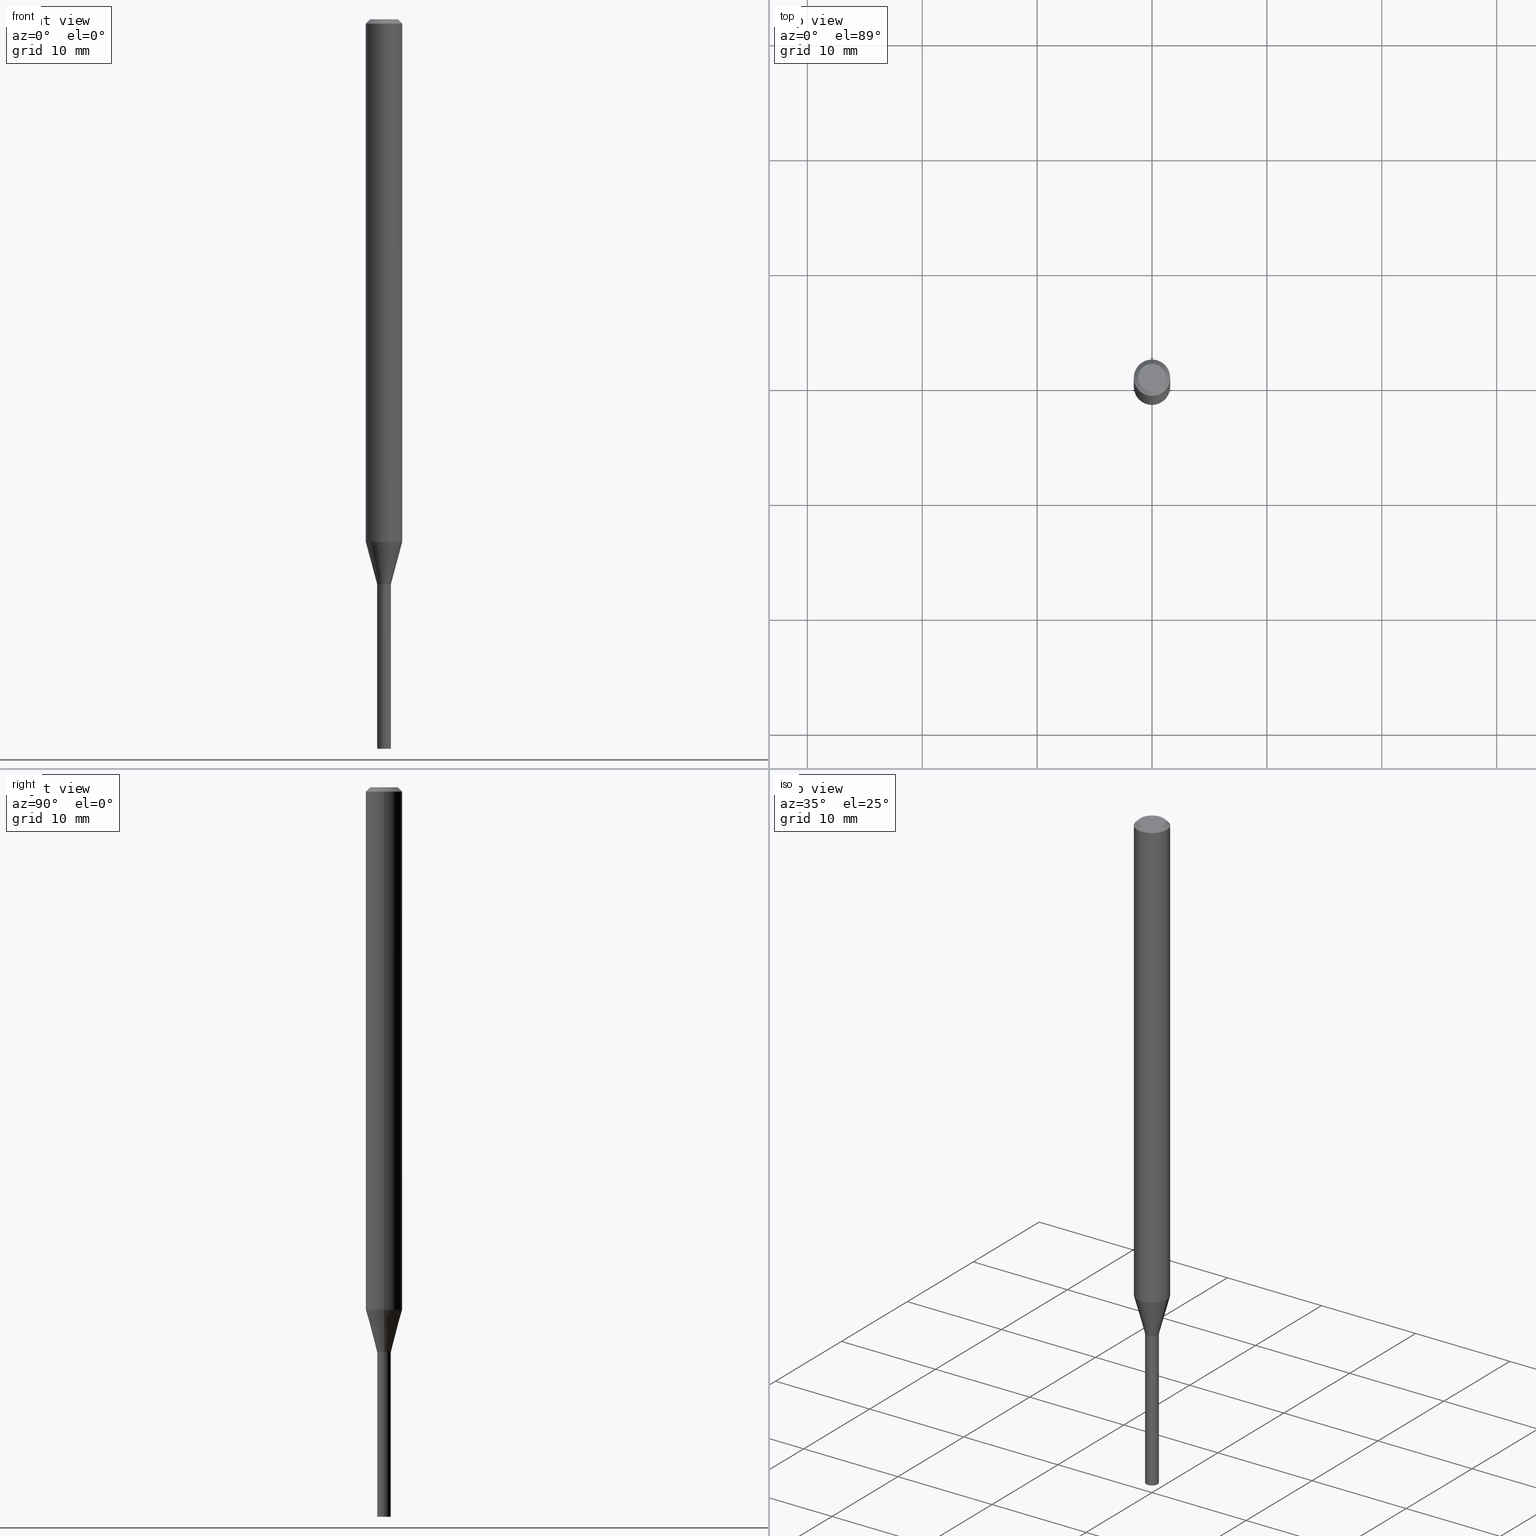
[diagram: canonical four-view strip — front | top / right | iso, engineering-drawing reading convention]
A machine part, canonical four-view strip (front | top / right | iso — engineering-drawing reading convention). The complete STEP part file that produces these views, byte-faithful:
ISO-10303-21;
HEADER;
FILE_DESCRIPTION (( 'STEP AP203' ),
    '1' );
FILE_NAME ('01292.STEP',
    '2024-03-20T01:06:53',
    ( '' ),
    ( '' ),
    'SwSTEP 2.0',
    'SolidWorks 2023',
    '' );
FILE_SCHEMA (( 'CONFIG_CONTROL_DESIGN' ));
ENDSEC;

DATA;
#1 = CIRCLE ( 'NONE', #242, 0.02299999999999999961 ) ;
#2 = FACE_OUTER_BOUND ( 'NONE', #456, .T. ) ;
#3 = CARTESIAN_POINT ( 'NONE',  ( 0.02350000000000000352, -1.640996229256272766E-16, 1.145901542312045115E-30 ) ) ;
#4 = CARTESIAN_POINT ( 'NONE',  ( 0.02350000000000000352, -6.923607494925958466E-15, -1.936000000000000387 ) ) ;
#5 = ORIENTED_EDGE ( 'NONE', *, *, #195, .T. ) ;
#6 = APPROVAL_STATUS ( 'not_yet_approved' ) ;
#7 = CC_DESIGN_PERSON_AND_ORGANIZATION_ASSIGNMENT ( #241, #382, ( #138 ) ) ;
#8 = DIRECTION ( 'NONE',  ( -2.445468806185136597E-29, 3.491481338843145583E-15, 1.000000000000000000 ) ) ;
#9 = ADVANCED_BREP_SHAPE_REPRESENTATION ( '01292', ( #386, #221, #454 ), #415 ) ;
#10 = PERSON_AND_ORGANIZATION ( #145, #103 ) ;
#11 = CARTESIAN_POINT ( 'NONE',  ( 4.378489669287124378E-29, -6.251322827740924299E-15, -1.790450018504814444 ) ) ;
#12 = AXIS2_PLACEMENT_3D ( 'NONE', #175, #352, #218 ) ;
#13 = CYLINDRICAL_SURFACE ( 'NONE', #227, 0.06250000000000000000 ) ;
#14 = DIRECTION ( 'NONE',  ( -2.445468806185136597E-29, 3.491481338843145583E-15, 1.000000000000000000 ) ) ;
#15 = DIRECTION ( 'NONE',  ( 0.7071067811865361374, -7.319954787623216602E-15, -0.7071067811865587860 ) ) ;
#16 = PRODUCT_RELATED_PRODUCT_CATEGORY ( 'detail', '', ( #122 ) ) ;
#17 = DIRECTION ( 'NONE',  ( -1.000000000000000000, 6.982962677686266711E-15, 0.000000000000000000 ) ) ;
#18 = AXIS2_PLACEMENT_3D ( 'NONE', #141, #286, #380 ) ;
#19 = CARTESIAN_POINT ( 'NONE',  ( -0.02350000000000000352, -7.577128066650474978E-15, -1.936000000000000387 ) ) ;
#20 = ORIENTED_EDGE ( 'NONE', *, *, #348, .F. ) ;
#21 = CARTESIAN_POINT ( 'NONE',  ( -0.06250000000000000000, -2.707758314061723270E-15, -0.01499999999999999944 ) ) ;
#22 = ADVANCED_FACE ( 'NONE', ( #208 ), #183, .T. ) ;
#23 = ORIENTED_EDGE ( 'NONE', *, *, #385, .T. ) ;
#24 = EDGE_LOOP ( 'NONE', ( #118, #412, #343, #265 ) ) ;
#25 = CARTESIAN_POINT ( 'NONE',  ( -1.179149380323703493E-44, 1.683512808135566071E-30, 4.821772321697055986E-16 ) ) ;
#26 = EDGE_LOOP ( 'NONE', ( #200, #20, #54, #164 ) ) ;
#27 = CC_DESIGN_APPROVAL ( #411, ( #90 ) ) ;
#28 = PERSON_AND_ORGANIZATION ( #145, #103 ) ;
#29 = EDGE_LOOP ( 'NONE', ( #267, #62, #228, #99 ) ) ;
#30 = APPROVAL_STATUS ( 'not_yet_approved' ) ;
#31 = APPROVAL_STATUS ( 'not_yet_approved' ) ;
#32 = ORIENTED_EDGE ( 'NONE', *, *, #140, .T. ) ;
#33 = EDGE_CURVE ( 'NONE', #167, #106, #301, .T. ) ;
#34 = DIRECTION ( 'NONE',  ( 1.000000000000000000, -6.982962677686247778E-15, 0.000000000000000000 ) ) ;
#35 = EDGE_CURVE ( 'NONE', #167, #272, #191, .T. ) ;
#36 = DATE_AND_TIME ( #324, #209 ) ;
#37 = CARTESIAN_POINT ( 'NONE',  ( 6.113672015462842613E-29, -8.728703347107864943E-15, -2.500000000000000000 ) ) ;
#38 = EDGE_CURVE ( 'NONE', #132, #266, #392, .T. ) ;
#39 = SHAPE_DEFINITION_REPRESENTATION ( #213, #9 ) ;
#40 = VECTOR ( 'NONE', #153, 39.37007874015748854 ) ;
#41 = DIRECTION ( 'NONE',  ( -2.445468806185136877E-29, 3.491481338843145188E-15, 1.000000000000000000 ) ) ;
#42 = DIRECTION ( 'NONE',  ( 2.445468806185136597E-29, -3.491481338843145583E-15, -1.000000000000000000 ) ) ;
#43 = CC_DESIGN_SECURITY_CLASSIFICATION ( #90, ( #452 ) ) ;
#44 = SECURITY_CLASSIFICATION_LEVEL ( 'unclassified' ) ;
#45 = CARTESIAN_POINT ( 'NONE',  ( -0.04749999999999999362, 3.578768372314218888E-16, 4.821772321697032320E-16 ) ) ;
#46 = ORIENTED_EDGE ( 'NONE', *, *, #306, .T. ) ;
#47 = PERSON_AND_ORGANIZATION_ROLE ( 'design_supplier' ) ;
#48 = ORIENTED_EDGE ( 'NONE', *, *, #195, .F. ) ;
#49 = DIRECTION ( 'NONE',  ( -2.445468806185136597E-29, 3.491481338843145583E-15, 1.000000000000000000 ) ) ;
#50 = ORIENTED_EDGE ( 'NONE', *, *, #401, .T. ) ;
#51 = VERTEX_POINT ( 'NONE', #69 ) ;
#52 = DIRECTION ( 'NONE',  ( 2.445468806185136597E-29, -3.491481338843145583E-15, -1.000000000000000000 ) ) ;
#53 = VECTOR ( 'NONE', #342, 39.37007874015748143 ) ;
#54 = ORIENTED_EDGE ( 'NONE', *, *, #370, .T. ) ;
#55 = CC_DESIGN_APPROVAL ( #363, ( #452 ) ) ;
#56 = CARTESIAN_POINT ( 'NONE',  ( 0.02349999999999992373, -1.640996229256267589E-16, 1.145901542312041261E-30 ) ) ;
#57 = CC_DESIGN_PERSON_AND_ORGANIZATION_ASSIGNMENT ( #360, #80, ( #452 ) ) ;
#58 = DIRECTION ( 'NONE',  ( 1.000000000000000000, -6.982962677686251722E-15, 0.000000000000000000 ) ) ;
#59 = EDGE_CURVE ( 'NONE', #106, #137, #199, .T. ) ;
#60 = DIRECTION ( 'NONE',  ( 1.000000000000000000, -6.982962677686253300E-15, 0.000000000000000000 ) ) ;
#61 = CARTESIAN_POINT ( 'NONE',  ( 0.000000000000000000, 0.000000000000000000, 0.000000000000000000 ) ) ;
#62 = ORIENTED_EDGE ( 'NONE', *, *, #154, .T. ) ;
#63 = AXIS2_PLACEMENT_3D ( 'NONE', #319, #42, #113 ) ;
#64 = FACE_OUTER_BOUND ( 'NONE', #87, .T. ) ;
#65 = VERTEX_POINT ( 'NONE', #407 ) ;
#66 = ADVANCED_FACE ( 'NONE', ( #245 ), #443, .T. ) ;
#67 = LINE ( 'NONE', #421, #53 ) ;
#68 = APPLICATION_CONTEXT ( 'configuration controlled 3d designs of mechanical parts and assemblies' ) ;
#69 = CARTESIAN_POINT ( 'NONE',  ( -0.02350000000000000352, -7.577128066650474978E-15, -2.500000000000000000 ) ) ;
#70 = AXIS2_PLACEMENT_3D ( 'NONE', #61, #223, #364 ) ;
#71 = DIRECTION ( 'NONE',  ( 1.000000000000000000, -6.982962677686251722E-15, 0.000000000000000000 ) ) ;
#72 = DIRECTION ( 'NONE',  ( 1.000000000000000000, 0.000000000000000000, 0.000000000000000000 ) ) ;
#73 = PLANE ( 'NONE',  #18 ) ;
#74 = VECTOR ( 'NONE', #327, 39.37007874015748143 ) ;
#75 = APPROVAL ( #30, 'UNSPECIFIED' ) ;
#76 = VERTEX_POINT ( 'NONE', #418 ) ;
#77 = EDGE_CURVE ( 'NONE', #347, #137, #314, .T. ) ;
#78 = LINE ( 'NONE', #393, #436 ) ;
#79 = ORIENTED_EDGE ( 'NONE', *, *, #370, .F. ) ;
#80 = PERSON_AND_ORGANIZATION_ROLE ( 'creator' ) ;
#81 = CYLINDRICAL_SURFACE ( 'NONE', #389, 0.02350000000000000352 ) ;
#82 = AXIS2_PLACEMENT_3D ( 'NONE', #108, #322, #146 ) ;
#83 = CARTESIAN_POINT ( 'NONE',  ( -0.02350000000000000352, 1.669775429036235687E-16, -1.155949746209903035E-30 ) ) ;
#84 = APPROVAL_DATE_TIME ( #246, #411 ) ;
#85 = LINE ( 'NONE', #86, #40 ) ;
#86 = CARTESIAN_POINT ( 'NONE',  ( -0.06250000000000000000, 3.840629472727444916E-16, -0.01499999999999999944 ) ) ;
#87 = EDGE_LOOP ( 'NONE', ( #166, #216 ) ) ;
#88 = DIRECTION ( 'NONE',  ( 1.000000000000000000, -6.982962677686269866E-15, 0.000000000000000000 ) ) ;
#89 = AXIS2_PLACEMENT_3D ( 'NONE', #287, #400, #399 ) ;
#90 = SECURITY_CLASSIFICATION ( '', '', #44 ) ;
#91 = CLOSED_SHELL ( 'NONE', ( #274, #312, #285, #426 ) ) ;
#92 = CIRCLE ( 'NONE', #149, 0.04749999999999999362 ) ;
#93 = DIRECTION ( 'NONE',  ( -2.445468806185136597E-29, 3.491481338843145583E-15, 1.000000000000000000 ) ) ;
#94 = PLANE ( 'NONE',  #365 ) ;
#95 = ORIENTED_EDGE ( 'NONE', *, *, #237, .T. ) ;
#96 = CARTESIAN_POINT ( 'NONE',  ( -0.06250000000000000000, 4.440892098500626162E-16, -3.074334431409316114E-30 ) ) ;
#97 = AXIS2_PLACEMENT_3D ( 'NONE', #358, #390, #119 ) ;
#98 = PERSON_AND_ORGANIZATION_ROLE ( 'design_owner' ) ;
#99 = ORIENTED_EDGE ( 'NONE', *, *, #326, .F. ) ;
#100 = APPROVAL_DATE_TIME ( #457, #75 ) ;
#101 = VECTOR ( 'NONE', #305, 39.37007874015748143 ) ;
#102 = ORIENTED_EDGE ( 'NONE', *, *, #258, .T. ) ;
#103 = ORGANIZATION ( 'UNSPECIFIED', 'UNSPECIFIED', '' ) ;
#104 = COORDINATED_UNIVERSAL_TIME_OFFSET ( 5, 0, .BEHIND. ) ;
#105 = EDGE_CURVE ( 'NONE', #110, #296, #379, .T. ) ;
#106 = VERTEX_POINT ( 'NONE', #294 ) ;
#107 = PERSON_AND_ORGANIZATION_ROLE ( 'classification_officer' ) ;
#108 = CARTESIAN_POINT ( 'NONE',  ( 3.668203209277705088E-31, -5.237222008264718399E-17, -0.01499999999999999944 ) ) ;
#109 = AXIS2_PLACEMENT_3D ( 'NONE', #303, #155, #162 ) ;
#110 = VERTEX_POINT ( 'NONE', #45 ) ;
#111 = LINE ( 'NONE', #355, #383 ) ;
#112 = CARTESIAN_POINT ( 'NONE',  ( -0.02299999999999999961, -6.593433815601398009E-15, -1.936000000000000387 ) ) ;
#113 = DIRECTION ( 'NONE',  ( -1.000000000000000000, 6.982962677686266711E-15, 0.000000000000000000 ) ) ;
#114 = EDGE_CURVE ( 'NONE', #167, #347, #78, .T. ) ;
#115 = DATE_TIME_ROLE ( 'classification_date' ) ;
#116 = DIRECTION ( 'NONE',  ( 1.000000000000000000, -6.982962677686265922E-15, 4.876176775795935793E-29 ) ) ;
#117 = AXIS2_PLACEMENT_3D ( 'NONE', #353, #264, #131 ) ;
#118 = ORIENTED_EDGE ( 'NONE', *, *, #323, .F. ) ;
#119 = DIRECTION ( 'NONE',  ( 1.000000000000000000, -6.982962677686253300E-15, 0.000000000000000000 ) ) ;
#120 = ORIENTED_EDGE ( 'NONE', *, *, #180, .T. ) ;
#121 = DIRECTION ( 'NONE',  ( 1.000000000000000000, -6.982962677686253300E-15, 0.000000000000000000 ) ) ;
#122 = PRODUCT ( '01292', '01292', '', ( #239 ) ) ;
#123 = ADVANCED_FACE ( 'NONE', ( #2 ), #346, .T. ) ;
#124 = FACE_OUTER_BOUND ( 'NONE', #409, .T. ) ;
#125 = CONICAL_SURFACE ( 'NONE', #176, 0.02299999999999999961, 0.7853981633974739252 ) ;
#126 = AXIS2_PLACEMENT_3D ( 'NONE', #220, #14, #449 ) ;
#127 = DIRECTION ( 'NONE',  ( -2.445468806185136597E-29, 3.491481338843145583E-15, 1.000000000000000000 ) ) ;
#128 = CARTESIAN_POINT ( 'NONE',  ( 0.000000000000000000, 0.000000000000000000, 0.000000000000000000 ) ) ;
#129 = EDGE_LOOP ( 'NONE', ( #259, #187 ) ) ;
#130 = VERTEX_POINT ( 'NONE', #290 ) ;
#131 = DIRECTION ( 'NONE',  ( 1.000000000000000000, -6.982962677686262766E-15, 0.000000000000000000 ) ) ;
#132 = VERTEX_POINT ( 'NONE', #434 ) ;
#133 = CARTESIAN_POINT ( 'NONE',  ( 4.734427608774424873E-29, -6.759507872000331609E-15, -1.936000000000000387 ) ) ;
#134 = EDGE_CURVE ( 'NONE', #132, #51, #236, .T. ) ;
#135 = CARTESIAN_POINT ( 'NONE',  ( 4.734427608774424873E-29, -6.759507872000331609E-15, -1.936000000000000387 ) ) ;
#136 = CIRCLE ( 'NONE', #12, 0.02350000000000000352 ) ;
#137 = VERTEX_POINT ( 'NONE', #185 ) ;
#138 = PRODUCT_DEFINITION ( 'UNKNOWN', '', #452, #252 ) ;
#139 =( NAMED_UNIT ( * ) PLANE_ANGLE_UNIT ( ) SI_UNIT ( $, .RADIAN. ) );
#140 = EDGE_CURVE ( 'NONE', #76, #354, #279, .T. ) ;
#141 = CARTESIAN_POINT ( 'NONE',  ( 4.734427608774424873E-29, -6.759507872000331609E-15, -1.936000000000000387 ) ) ;
#142 = ORIENTED_EDGE ( 'NONE', *, *, #105, .F. ) ;
#143 = CARTESIAN_POINT ( 'NONE',  ( 4.733204874371333192E-29, -6.757762131330910105E-15, -1.935500000000000442 ) ) ;
#144 = PLANE ( 'NONE',  #277 ) ;
#145 = PERSON ( 'UNSPECIFIED', 'UNSPECIFIED', 'UNSPECIFIED', ('UNSPECIFIED'), ('UNSPECIFIED'), ('UNSPECIFIED') ) ;
#146 = DIRECTION ( 'NONE',  ( 1.000000000000000000, -6.982962677686266711E-15, 0.000000000000000000 ) ) ;
#147 = AXIS2_PLACEMENT_3D ( 'NONE', #37, #318, #148 ) ;
#148 = DIRECTION ( 'NONE',  ( 1.000000000000000000, -6.982962677686228056E-15, 0.000000000000000000 ) ) ;
#149 = AXIS2_PLACEMENT_3D ( 'NONE', #25, #197, #344 ) ;
#150 = CARTESIAN_POINT ( 'NONE',  ( 4.734427608774424873E-29, -6.759507872000331609E-15, -1.936000000000000387 ) ) ;
#151 = APPROVAL_ROLE ( '' ) ;
#152 = FACE_OUTER_BOUND ( 'NONE', #419, .T. ) ;
#153 = DIRECTION ( 'NONE',  ( -0.7071067811865361374, 2.468850131082138337E-15, -0.7071067811865587860 ) ) ;
#154 = EDGE_CURVE ( 'NONE', #168, #65, #1, .T. ) ;
#155 = DIRECTION ( 'NONE',  ( -2.445468806185136597E-29, 3.491481338843145583E-15, 1.000000000000000000 ) ) ;
#156 = ORIENTED_EDGE ( 'NONE', *, *, #140, .F. ) ;
#157 = CARTESIAN_POINT ( 'NONE',  ( 3.316907271900976096E-16, 0.04749999999999999362, 7.524325248980341519E-17 ) ) ;
#158 = ORIENTED_EDGE ( 'NONE', *, *, #33, .T. ) ;
#159 = ORIENTED_EDGE ( 'NONE', *, *, #59, .T. ) ;
#160 = DIRECTION ( 'NONE',  ( 1.000000000000000000, -6.982962677686266711E-15, 4.876176775795935793E-29 ) ) ;
#161 = CONICAL_SURFACE ( 'NONE', #215, 0.02349999999999992026, 0.2617993877991504625 ) ;
#162 = DIRECTION ( 'NONE',  ( 1.000000000000000000, -6.982962677686267499E-15, 4.876176775795936353E-29 ) ) ;
#163 = DIRECTION ( 'NONE',  ( -2.445468806185136877E-29, 3.491481338843145188E-15, 1.000000000000000000 ) ) ;
#164 = ORIENTED_EDGE ( 'NONE', *, *, #433, .T. ) ;
#165 = CYLINDRICAL_SURFACE ( 'NONE', #70, 0.02349999999999992373 ) ;
#166 = ORIENTED_EDGE ( 'NONE', *, *, #134, .F. ) ;
#167 = VERTEX_POINT ( 'NONE', #435 ) ;
#168 = VERTEX_POINT ( 'NONE', #112 ) ;
#169 = VECTOR ( 'NONE', #15, 39.37007874015748854 ) ;
#170 = DATE_AND_TIME ( #201, #178 ) ;
#171 = ORIENTED_EDGE ( 'NONE', *, *, #38, .F. ) ;
#172 = AXIS2_PLACEMENT_3D ( 'NONE', #429, #179, #464 ) ;
#173 = CARTESIAN_POINT ( 'NONE',  ( 1.640996229256746082E-16, 0.02349999999999324157, -1.936000000000000387 ) ) ;
#174 = DIRECTION ( 'NONE',  ( -2.445468806185136597E-29, 3.491481338843145583E-15, 1.000000000000000000 ) ) ;
#175 = CARTESIAN_POINT ( 'NONE',  ( 4.734427608774424873E-29, -6.759507872000331609E-15, -1.936000000000000387 ) ) ;
#176 = AXIS2_PLACEMENT_3D ( 'NONE', #133, #270, #329 ) ;
#177 = CALENDAR_DATE ( 2024, 19, 3 ) ;
#178 = LOCAL_TIME ( 21, 6, 53.00000000000000000, #104 ) ;
#179 = DIRECTION ( 'NONE',  ( -2.445468806185136597E-29, 3.491481338843145583E-15, 1.000000000000000000 ) ) ;
#180 = EDGE_CURVE ( 'NONE', #110, #354, #85, .T. ) ;
#181 = PERSON_AND_ORGANIZATION ( #145, #103 ) ;
#182 = CARTESIAN_POINT ( 'NONE',  ( 4.734427608774424873E-29, -6.759507872000331609E-15, -1.936000000000000387 ) ) ;
#183 = CYLINDRICAL_SURFACE ( 'NONE', #126, 0.06250000000000000000 ) ;
#184 = COORDINATED_UNIVERSAL_TIME_OFFSET ( 5, 0, .BEHIND. ) ;
#185 = CARTESIAN_POINT ( 'NONE',  ( 0.06250000000000000000, -6.687757995096315969E-15, -1.790450018504814444 ) ) ;
#186 = CARTESIAN_POINT ( 'NONE',  ( 4.733204874371333192E-29, -6.757762131330910105E-15, -1.935500000000000442 ) ) ;
#187 = ORIENTED_EDGE ( 'NONE', *, *, #448, .T. ) ;
#188 = CARTESIAN_POINT ( 'NONE',  ( 4.734427608774424873E-29, -6.759507872000331609E-15, -1.936000000000000387 ) ) ;
#189 = CARTESIAN_POINT ( 'NONE',  ( 4.734427608774424873E-29, -6.759507872000331609E-15, -1.936000000000000387 ) ) ;
#190 = DIRECTION ( 'NONE',  ( -2.438088387897960049E-29, 3.491481338843145188E-15, 1.000000000000000000 ) ) ;
#191 = LINE ( 'NONE', #463, #271 ) ;
#192 = CARTESIAN_POINT ( 'NONE',  ( -0.06250000000000000000, -5.807233617890861683E-15, -1.790450018504814444 ) ) ;
#193 = CIRCLE ( 'NONE', #283, 0.02349999999999992373 ) ;
#194 = VECTOR ( 'NONE', #163, 39.37007874015748143 ) ;
#195 = EDGE_CURVE ( 'NONE', #137, #347, #288, .T. ) ;
#196 = CARTESIAN_POINT ( 'NONE',  ( 6.194428952736783458E-29, -8.613054816532157721E-15, -2.500000000000000000 ) ) ;
#197 = DIRECTION ( 'NONE',  ( -2.445468806185136597E-29, 3.491481338843145583E-15, 1.000000000000000000 ) ) ;
#198 = AXIS2_PLACEMENT_3D ( 'NONE', #196, #190, #417 ) ;
#199 = LINE ( 'NONE', #441, #461 ) ;
#200 = ORIENTED_EDGE ( 'NONE', *, *, #35, .F. ) ;
#201 = CALENDAR_DATE ( 2024, 19, 3 ) ;
#202 = UNCERTAINTY_MEASURE_WITH_UNIT (LENGTH_MEASURE( 1.000000000000000082E-05 ), #206, 'distance_accuracy_value', 'NONE');
#203 = ORIENTED_EDGE ( 'NONE', *, *, #59, .F. ) ;
#204 = ORIENTED_EDGE ( 'NONE', *, *, #154, .F. ) ;
#205 = PERSON_AND_ORGANIZATION ( #145, #103 ) ;
#206 =( CONVERSION_BASED_UNIT ( 'INCH', #313 ) LENGTH_UNIT ( ) NAMED_UNIT ( #278 ) );
#207 = VECTOR ( 'NONE', #373, 39.37007874015748143 ) ;
#208 = FACE_OUTER_BOUND ( 'NONE', #376, .T. ) ;
#209 = LOCAL_TIME ( 21, 6, 53.00000000000000000, #184 ) ;
#210 = EDGE_LOOP ( 'NONE', ( #438, #158, #159, #366 ) ) ;
#211 = AXIS2_PLACEMENT_3D ( 'NONE', #260, #289, #250 ) ;
#212 = LINE ( 'NONE', #83, #74 ) ;
#213 = PRODUCT_DEFINITION_SHAPE ( 'NONE', 'NONE',  #138 ) ;
#214 = FACE_OUTER_BOUND ( 'NONE', #422, .T. ) ;
#215 = AXIS2_PLACEMENT_3D ( 'NONE', #135, #447, #121 ) ;
#216 = ORIENTED_EDGE ( 'NONE', *, *, #258, .F. ) ;
#217 = APPROVAL_DATE_TIME ( #255, #363 ) ;
#218 = DIRECTION ( 'NONE',  ( 1.000000000000000000, -6.982962677686269866E-15, 0.000000000000000000 ) ) ;
#219 = DIRECTION ( 'NONE',  ( -2.445468806185136597E-29, 3.491481338843145583E-15, 1.000000000000000000 ) ) ;
#220 = CARTESIAN_POINT ( 'NONE',  ( 0.000000000000000000, 0.000000000000000000, 0.000000000000000000 ) ) ;
#221 = MANIFOLD_SOLID_BREP ( 'Body-Move/Copy2[2]', #405 ) ;
#222 = EDGE_CURVE ( 'NONE', #354, #76, #328, .T. ) ;
#223 = DIRECTION ( 'NONE',  ( -2.445468806185136597E-29, 3.491481338843145583E-15, 1.000000000000000000 ) ) ;
#224 = LOCAL_TIME ( 21, 6, 53.00000000000000000, #321 ) ;
#225 = LINE ( 'NONE', #413, #368 ) ;
#226 = ORIENTED_EDGE ( 'NONE', *, *, #251, .F. ) ;
#227 = AXIS2_PLACEMENT_3D ( 'NONE', #128, #333, #160 ) ;
#228 = ORIENTED_EDGE ( 'NONE', *, *, #420, .T. ) ;
#229 = DIRECTION ( 'NONE',  ( 1.000000000000000000, -6.982962677686253300E-15, 0.000000000000000000 ) ) ;
#230 = DIRECTION ( 'NONE',  ( 0.2588190451025217387, 1.565188264969619207E-15, 0.9659258262890679791 ) ) ;
#231 = DIRECTION ( 'NONE',  ( -2.445468806185136597E-29, 3.491481338843145583E-15, 1.000000000000000000 ) ) ;
#232 = ADVANCED_FACE ( 'NONE', ( #254 ), #335, .T. ) ;
#233 = ORIENTED_EDGE ( 'NONE', *, *, #114, .T. ) ;
#234 = DIRECTION ( 'NONE',  ( -1.000000000000000000, 6.982962677686265922E-15, -4.876176775795935793E-29 ) ) ;
#235 = LOCAL_TIME ( 21, 6, 53.00000000000000000, #455 ) ;
#236 = CIRCLE ( 'NONE', #211, 0.02350000000000000352 ) ;
#237 = EDGE_CURVE ( 'NONE', #51, #304, #212, .T. ) ;
#238 = DIRECTION ( 'NONE',  ( -2.445468806185136597E-29, 3.491481338843145583E-15, 1.000000000000000000 ) ) ;
#239 = MECHANICAL_CONTEXT ( 'NONE', #244, 'mechanical' ) ;
#240 = EDGE_LOOP ( 'NONE', ( #446, #249, #362, #79 ) ) ;
#241 = PERSON_AND_ORGANIZATION ( #145, #103 ) ;
#242 = AXIS2_PLACEMENT_3D ( 'NONE', #150, #394, #34 ) ;
#243 = DIRECTION ( 'NONE',  ( -1.000000000000000000, 6.982962677686265922E-15, -4.876176775795935793E-29 ) ) ;
#244 = APPLICATION_CONTEXT ( 'configuration controlled 3d designs of mechanical parts and assemblies' ) ;
#245 = FACE_OUTER_BOUND ( 'NONE', #367, .T. ) ;
#246 = DATE_AND_TIME ( #177, #256 ) ;
#247 = CIRCLE ( 'NONE', #147, 0.02350000000000000352 ) ;
#248 = AXIS2_PLACEMENT_3D ( 'NONE', #11, #219, #349 ) ;
#249 = ORIENTED_EDGE ( 'NONE', *, *, #35, .T. ) ;
#250 = DIRECTION ( 'NONE',  ( 1.000000000000000000, -6.982962677686228056E-15, 0.000000000000000000 ) ) ;
#251 = EDGE_CURVE ( 'NONE', #266, #304, #136, .T. ) ;
#252 = DESIGN_CONTEXT ( 'detailed design', #68, 'design' ) ;
#253 = DIRECTION ( 'NONE',  ( 1.000000000000000000, -6.982962677686265922E-15, 4.876176775795935793E-29 ) ) ;
#254 = FACE_OUTER_BOUND ( 'NONE', #29, .T. ) ;
#255 = DATE_AND_TIME ( #351, #224 ) ;
#256 = LOCAL_TIME ( 21, 6, 53.00000000000000000, #398 ) ;
#257 = FACE_OUTER_BOUND ( 'NONE', #396, .T. ) ;
#258 = EDGE_CURVE ( 'NONE', #51, #132, #247, .T. ) ;
#259 = ORIENTED_EDGE ( 'NONE', *, *, #105, .T. ) ;
#260 = CARTESIAN_POINT ( 'NONE',  ( 6.113672015462842613E-29, -8.728703347107864943E-15, -2.500000000000000000 ) ) ;
#261 = ORIENTED_EDGE ( 'NONE', *, *, #323, .T. ) ;
#262 = ORIENTED_EDGE ( 'NONE', *, *, #38, .T. ) ;
#263 = DIRECTION ( 'NONE',  ( 2.438088387897960049E-29, -3.491481338843145188E-15, -1.000000000000000000 ) ) ;
#264 = DIRECTION ( 'NONE',  ( -2.445468806185136597E-29, 3.491481338843145583E-15, 1.000000000000000000 ) ) ;
#265 = ORIENTED_EDGE ( 'NONE', *, *, #222, .F. ) ;
#266 = VERTEX_POINT ( 'NONE', #4 ) ;
#267 = ORIENTED_EDGE ( 'NONE', *, *, #414, .F. ) ;
#268 = CIRCLE ( 'NONE', #320, 0.02349999999999992373 ) ;
#269 = CC_DESIGN_DATE_AND_TIME_ASSIGNMENT ( #36, #115, ( #90 ) ) ;
#270 = DIRECTION ( 'NONE',  ( -2.445468806185136597E-29, 3.491481338843145583E-15, 1.000000000000000000 ) ) ;
#271 = VECTOR ( 'NONE', #466, 39.37007874015748143 ) ;
#272 = VERTEX_POINT ( 'NONE', #325 ) ;
#273 = CARTESIAN_POINT ( 'NONE',  ( 0.06250000000000000000, -4.811533449433679005E-16, -0.01499999999999999944 ) ) ;
#274 = ADVANCED_FACE ( 'NONE', ( #214 ), #81, .T. ) ;
#275 = FACE_OUTER_BOUND ( 'NONE', #129, .T. ) ;
#276 = CARTESIAN_POINT ( 'NONE',  ( 3.668203209277705088E-31, -5.237222008264718399E-17, -0.01499999999999999944 ) ) ;
#277 = AXIS2_PLACEMENT_3D ( 'NONE', #173, #458, #243 ) ;
#278 = DIMENSIONAL_EXPONENTS ( 1.000000000000000000, 0.000000000000000000, 0.000000000000000000, 0.000000000000000000, 0.000000000000000000, 0.000000000000000000, 0.000000000000000000 ) ;
#279 = CIRCLE ( 'NONE', #89, 0.06250000000000000000 ) ;
#280 = EDGE_CURVE ( 'NONE', #137, #76, #111, .T. ) ;
#281 =( NAMED_UNIT ( * ) SI_UNIT ( $, .STERADIAN. ) SOLID_ANGLE_UNIT ( ) );
#282 = CALENDAR_DATE ( 2024, 19, 3 ) ;
#283 = AXIS2_PLACEMENT_3D ( 'NONE', #143, #238, #71 ) ;
#284 = FACE_OUTER_BOUND ( 'NONE', #317, .T. ) ;
#285 = ADVANCED_FACE ( 'NONE', ( #152 ), #291, .T. ) ;
#286 = DIRECTION ( 'NONE',  ( -2.438088387897960049E-29, 3.491481338843145188E-15, 1.000000000000000000 ) ) ;
#287 = CARTESIAN_POINT ( 'NONE',  ( 3.668203209277705088E-31, -5.237222008264718399E-17, -0.01499999999999999944 ) ) ;
#288 = CIRCLE ( 'NONE', #248, 0.06250000000000000000 ) ;
#289 = DIRECTION ( 'NONE',  ( -2.445468806185136597E-29, 3.491481338843145583E-15, 1.000000000000000000 ) ) ;
#290 = CARTESIAN_POINT ( 'NONE',  ( 0.02349999999999992373, -6.921861754256536174E-15, -1.935500000000000442 ) ) ;
#291 = CYLINDRICAL_SURFACE ( 'NONE', #356, 0.02350000000000000352 ) ;
#292 = ADVANCED_FACE ( 'NONE', ( #257 ), #403, .T. ) ;
#293 = APPROVAL_PERSON_ORGANIZATION ( #205, #363, #357 ) ;
#294 = CARTESIAN_POINT ( 'NONE',  ( 0.02349999999999992026, -6.923607494925957677E-15, -1.936000000000000387 ) ) ;
#295 = FACE_OUTER_BOUND ( 'NONE', #210, .T. ) ;
#296 = VERTEX_POINT ( 'NONE', #297 ) ;
#297 = CARTESIAN_POINT ( 'NONE',  ( 0.04749999999999999362, -4.035134999187569748E-16, 4.821772321697081624E-16 ) ) ;
#298 = ORIENTED_EDGE ( 'NONE', *, *, #401, .F. ) ;
#299 = AXIS2_PLACEMENT_3D ( 'NONE', #188, #93, #229 ) ;
#300 = FACE_OUTER_BOUND ( 'NONE', #240, .T. ) ;
#301 = CIRCLE ( 'NONE', #397, 0.02349999999999992026 ) ;
#302 = ORIENTED_EDGE ( 'NONE', *, *, #306, .F. ) ;
#303 = CARTESIAN_POINT ( 'NONE',  ( 0.000000000000000000, 0.000000000000000000, 0.000000000000000000 ) ) ;
#304 = VERTEX_POINT ( 'NONE', #19 ) ;
#305 = DIRECTION ( 'NONE',  ( -2.445468806185136877E-29, 3.491481338843145188E-15, 1.000000000000000000 ) ) ;
#306 = EDGE_CURVE ( 'NONE', #65, #168, #430, .T. ) ;
#307 = ORIENTED_EDGE ( 'NONE', *, *, #251, .T. ) ;
#308 = CIRCLE ( 'NONE', #299, 0.02349999999999992026 ) ;
#309 = CARTESIAN_POINT ( 'NONE',  ( 0.000000000000000000, 0.000000000000000000, 0.000000000000000000 ) ) ;
#310 = DATE_TIME_ROLE ( 'creation_date' ) ;
#311 = ORIENTED_EDGE ( 'NONE', *, *, #134, .T. ) ;
#312 = ADVANCED_FACE ( 'NONE', ( #64 ), #450, .F. ) ;
#313 = LENGTH_MEASURE_WITH_UNIT ( LENGTH_MEASURE( 0.02539999999999999897 ), #340 );
#314 = CIRCLE ( 'NONE', #117, 0.06250000000000000000 ) ;
#315 = ADVANCED_FACE ( 'NONE', ( #406 ), #165, .F. ) ;
#316 = DIRECTION ( 'NONE',  ( 1.000000000000000000, -6.982962677686247778E-15, 0.000000000000000000 ) ) ;
#317 = EDGE_LOOP ( 'NONE', ( #302, #204 ) ) ;
#318 = DIRECTION ( 'NONE',  ( -2.445468806185136597E-29, 3.491481338843145583E-15, 1.000000000000000000 ) ) ;
#319 = CARTESIAN_POINT ( 'NONE',  ( 3.668203209277705088E-31, -5.237222008264718399E-17, -0.01499999999999999944 ) ) ;
#320 = AXIS2_PLACEMENT_3D ( 'NONE', #186, #439, #58 ) ;
#321 = COORDINATED_UNIVERSAL_TIME_OFFSET ( 5, 0, .BEHIND. ) ;
#322 = DIRECTION ( 'NONE',  ( -2.445468806185136597E-29, 3.491481338843145583E-15, 1.000000000000000000 ) ) ;
#323 = EDGE_CURVE ( 'NONE', #347, #354, #440, .T. ) ;
#324 = CALENDAR_DATE ( 2024, 19, 3 ) ;
#325 = CARTESIAN_POINT ( 'NONE',  ( -0.02349999999999992373, -6.590784588427286808E-15, -1.935500000000000442 ) ) ;
#326 = EDGE_CURVE ( 'NONE', #272, #130, #268, .T. ) ;
#327 = DIRECTION ( 'NONE',  ( -2.445468806185136877E-29, 3.491481338843145188E-15, 1.000000000000000000 ) ) ;
#328 = CIRCLE ( 'NONE', #82, 0.06250000000000000000 ) ;
#329 = DIRECTION ( 'NONE',  ( 1.000000000000000000, -6.982962677686247778E-15, 0.000000000000000000 ) ) ;
#330 = ORIENTED_EDGE ( 'NONE', *, *, #222, .T. ) ;
#331 = DIRECTION ( 'NONE',  ( -2.445468806185136597E-29, 3.491481338843145583E-15, 1.000000000000000000 ) ) ;
#332 = ADVANCED_FACE ( 'NONE', ( #124 ), #125, .T. ) ;
#333 = DIRECTION ( 'NONE',  ( -2.445468806185136597E-29, 3.491481338843145583E-15, 1.000000000000000000 ) ) ;
#334 = CC_DESIGN_PERSON_AND_ORGANIZATION_ASSIGNMENT ( #28, #98, ( #122 ) ) ;
#335 = CONICAL_SURFACE ( 'NONE', #428, 0.02299999999999999961, 0.7853981633974739252 ) ;
#336 = LINE ( 'NONE', #56, #101 ) ;
#337 = ORIENTED_EDGE ( 'NONE', *, *, #433, .F. ) ;
#338 = DIRECTION ( 'NONE',  ( 1.000000000000000000, -6.982962677686247778E-15, 0.000000000000000000 ) ) ;
#339 = ORIENTED_EDGE ( 'NONE', *, *, #448, .F. ) ;
#340 =( LENGTH_UNIT ( ) NAMED_UNIT ( * ) SI_UNIT ( $, .METRE. ) );
#341 = CC_DESIGN_PERSON_AND_ORGANIZATION_ASSIGNMENT ( #427, #107, ( #90 ) ) ;
#342 = DIRECTION ( 'NONE',  ( 0.7071067811865656694, -2.468850131082446387E-15, 0.7071067811865294761 ) ) ;
#343 = ORIENTED_EDGE ( 'NONE', *, *, #280, .T. ) ;
#344 = DIRECTION ( 'NONE',  ( 1.000000000000000000, -6.982962677686267499E-15, 4.852736867747366768E-29 ) ) ;
#345 = ORIENTED_EDGE ( 'NONE', *, *, #420, .F. ) ;
#346 = CONICAL_SURFACE ( 'NONE', #97, 0.02349999999999992026, 0.2617993877991504625 ) ;
#347 = VERTEX_POINT ( 'NONE', #192 ) ;
#348 = EDGE_CURVE ( 'NONE', #106, #167, #308, .T. ) ;
#349 = DIRECTION ( 'NONE',  ( 1.000000000000000000, -6.982962677686262766E-15, 0.000000000000000000 ) ) ;
#350 = ORIENTED_EDGE ( 'NONE', *, *, #385, .F. ) ;
#351 = CALENDAR_DATE ( 2024, 19, 3 ) ;
#352 = DIRECTION ( 'NONE',  ( -2.445468806185136597E-29, 3.491481338843145583E-15, 1.000000000000000000 ) ) ;
#353 = CARTESIAN_POINT ( 'NONE',  ( 4.378489669287124378E-29, -6.251322827740924299E-15, -1.790450018504814444 ) ) ;
#354 = VERTEX_POINT ( 'NONE', #21 ) ;
#355 = CARTESIAN_POINT ( 'NONE',  ( 0.06250000000000000000, -4.364351673553916694E-16, 3.047610484872459871E-30 ) ) ;
#356 = AXIS2_PLACEMENT_3D ( 'NONE', #361, #49, #116 ) ;
#357 = APPROVAL_ROLE ( '' ) ;
#358 = CARTESIAN_POINT ( 'NONE',  ( 4.734427608774424873E-29, -6.759507872000331609E-15, -1.936000000000000387 ) ) ;
#359 = ADVANCED_FACE ( 'NONE', ( #444 ), #13, .T. ) ;
#360 = PERSON_AND_ORGANIZATION ( #145, #103 ) ;
#361 = CARTESIAN_POINT ( 'NONE',  ( 0.000000000000000000, 0.000000000000000000, 0.000000000000000000 ) ) ;
#362 = ORIENTED_EDGE ( 'NONE', *, *, #326, .T. ) ;
#363 = APPROVAL ( #31, 'UNSPECIFIED' ) ;
#364 = DIRECTION ( 'NONE',  ( 1.000000000000000000, -6.982962677686267499E-15, 4.876176775795936353E-29 ) ) ;
#365 = AXIS2_PLACEMENT_3D ( 'NONE', #157, #263, #234 ) ;
#366 = ORIENTED_EDGE ( 'NONE', *, *, #77, .F. ) ;
#367 = EDGE_LOOP ( 'NONE', ( #339, #23, #32, #384 ) ) ;
#368 = VECTOR ( 'NONE', #378, 39.37007874015748143 ) ;
#369 = CYLINDRICAL_SURFACE ( 'NONE', #109, 0.02349999999999992373 ) ;
#370 = EDGE_CURVE ( 'NONE', #106, #130, #336, .T. ) ;
#371 = ORIENTED_EDGE ( 'NONE', *, *, #348, .T. ) ;
#372 = CARTESIAN_POINT ( 'NONE',  ( 4.734427608774424873E-29, -6.759507872000331609E-15, -1.936000000000000387 ) ) ;
#373 = DIRECTION ( 'NONE',  ( -2.445468806185136877E-29, 3.491481338843145188E-15, 1.000000000000000000 ) ) ;
#374 = ORIENTED_EDGE ( 'NONE', *, *, #237, .F. ) ;
#375 = ADVANCED_FACE ( 'NONE', ( #300 ), #369, .F. ) ;
#376 = EDGE_LOOP ( 'NONE', ( #5, #261, #156, #445 ) ) ;
#377 = APPROVAL_PERSON_ORGANIZATION ( #462, #75, #423 ) ;
#378 = DIRECTION ( 'NONE',  ( -0.7071067811865656694, 7.493145998870420424E-15, 0.7071067811865294761 ) ) ;
#379 = CIRCLE ( 'NONE', #172, 0.04749999999999999362 ) ;
#380 = DIRECTION ( 'NONE',  ( 1.000000000000000000, -6.982962677686265922E-15, 4.876176775795935793E-29 ) ) ;
#381 = APPLICATION_PROTOCOL_DEFINITION ( 'international standard', 'config_control_design', 1994, #68 ) ;
#382 = PERSON_AND_ORGANIZATION_ROLE ( 'creator' ) ;
#383 = VECTOR ( 'NONE', #41, 39.37007874015748143 ) ;
#384 = ORIENTED_EDGE ( 'NONE', *, *, #180, .F. ) ;
#385 = EDGE_CURVE ( 'NONE', #296, #76, #410, .T. ) ;
#386 = MANIFOLD_SOLID_BREP ( 'Body-Move/Copy2[1]', #91 ) ;
#387 = APPLICATION_PROTOCOL_DEFINITION ( 'international standard', 'config_control_design', 1994, #244 ) ;
#388 = ADVANCED_FACE ( 'NONE', ( #295 ), #161, .T. ) ;
#389 = AXIS2_PLACEMENT_3D ( 'NONE', #432, #8, #253 ) ;
#390 = DIRECTION ( 'NONE',  ( -2.445468806185136597E-29, 3.491481338843145583E-15, 1.000000000000000000 ) ) ;
#391 = ORIENTED_EDGE ( 'NONE', *, *, #414, .T. ) ;
#392 = LINE ( 'NONE', #3, #194 ) ;
#393 = CARTESIAN_POINT ( 'NONE',  ( -0.02349999999999992026, -6.592530329096708311E-15, -1.936000000000000387 ) ) ;
#394 = DIRECTION ( 'NONE',  ( -2.445468806185136597E-29, 3.491481338843145583E-15, 1.000000000000000000 ) ) ;
#395 = ADVANCED_FACE ( 'NONE', ( #275 ), #94, .F. ) ;
#396 = EDGE_LOOP ( 'NONE', ( #350, #142, #120, #330 ) ) ;
#397 = AXIS2_PLACEMENT_3D ( 'NONE', #189, #127, #60 ) ;
#398 = COORDINATED_UNIVERSAL_TIME_OFFSET ( 5, 0, .BEHIND. ) ;
#399 = DIRECTION ( 'NONE',  ( 1.000000000000000000, -6.982962677686266711E-15, 0.000000000000000000 ) ) ;
#400 = DIRECTION ( 'NONE',  ( -2.445468806185136597E-29, 3.491481338843145583E-15, 1.000000000000000000 ) ) ;
#401 = EDGE_CURVE ( 'NONE', #304, #266, #459, .T. ) ;
#402 = CARTESIAN_POINT ( 'NONE',  ( 4.734427608774424873E-29, -6.759507872000331609E-15, -1.936000000000000387 ) ) ;
#403 = CONICAL_SURFACE ( 'NONE', #424, 0.06250000000000000000, 0.7853981633974322918 ) ;
#404 = APPROVAL_PERSON_ORGANIZATION ( #181, #411, #151 ) ;
#405 = CLOSED_SHELL ( 'NONE', ( #375, #332, #66, #22, #123, #388, #359, #292, #395, #460, #232, #315 ) ) ;
#406 = FACE_OUTER_BOUND ( 'NONE', #26, .T. ) ;
#407 = CARTESIAN_POINT ( 'NONE',  ( 0.02299999999999999961, -6.920116013587114670E-15, -1.936000000000000387 ) ) ;
#408 = EDGE_LOOP ( 'NONE', ( #307, #50 ) ) ;
#409 = EDGE_LOOP ( 'NONE', ( #46, #391, #337, #345 ) ) ;
#410 = LINE ( 'NONE', #273, #169 ) ;
#411 = APPROVAL ( #6, 'UNSPECIFIED' ) ;
#412 = ORIENTED_EDGE ( 'NONE', *, *, #77, .T. ) ;
#413 = CARTESIAN_POINT ( 'NONE',  ( -0.02299999999999999961, -6.596083042775508421E-15, -1.936000000000000387 ) ) ;
#414 = EDGE_CURVE ( 'NONE', #168, #272, #225, .T. ) ;
#415 =( GEOMETRIC_REPRESENTATION_CONTEXT ( 3 ) GLOBAL_UNCERTAINTY_ASSIGNED_CONTEXT ( ( #202 ) ) GLOBAL_UNIT_ASSIGNED_CONTEXT ( ( #206, #139, #281 ) ) REPRESENTATION_CONTEXT ( 'NONE', 'WORKASPACE' ) );
#416 = CC_DESIGN_APPROVAL ( #75, ( #138 ) ) ;
#417 = DIRECTION ( 'NONE',  ( 1.000000000000000000, -6.982962677686265922E-15, 4.876176775795935793E-29 ) ) ;
#418 = CARTESIAN_POINT ( 'NONE',  ( 0.06250000000000000000, -4.888073874380388472E-16, -0.01499999999999999944 ) ) ;
#419 = EDGE_LOOP ( 'NONE', ( #374, #102, #262, #298 ) ) ;
#420 = EDGE_CURVE ( 'NONE', #65, #130, #67, .T. ) ;
#421 = CARTESIAN_POINT ( 'NONE',  ( 0.02299999999999999961, -6.920116013587114670E-15, -1.936000000000000387 ) ) ;
#422 = EDGE_LOOP ( 'NONE', ( #311, #95, #226, #171 ) ) ;
#423 = APPROVAL_ROLE ( '' ) ;
#424 = AXIS2_PLACEMENT_3D ( 'NONE', #276, #52, #17 ) ;
#425 = DIRECTION ( 'NONE',  ( 0.000000000000000000, 0.000000000000000000, 1.000000000000000000 ) ) ;
#426 = ADVANCED_FACE ( 'NONE', ( #453 ), #144, .F. ) ;
#427 = PERSON_AND_ORGANIZATION ( #145, #103 ) ;
#428 = AXIS2_PLACEMENT_3D ( 'NONE', #182, #174, #316 ) ;
#429 = CARTESIAN_POINT ( 'NONE',  ( -1.179149380323703493E-44, 1.683512808135566071E-30, 4.821772321697055986E-16 ) ) ;
#430 = CIRCLE ( 'NONE', #442, 0.02299999999999999961 ) ;
#431 = CC_DESIGN_PERSON_AND_ORGANIZATION_ASSIGNMENT ( #10, #47, ( #452 ) ) ;
#432 = CARTESIAN_POINT ( 'NONE',  ( 0.000000000000000000, 0.000000000000000000, 0.000000000000000000 ) ) ;
#433 = EDGE_CURVE ( 'NONE', #130, #272, #193, .T. ) ;
#434 = CARTESIAN_POINT ( 'NONE',  ( 0.02350000000000000352, -8.892802970033491011E-15, -2.500000000000000000 ) ) ;
#435 = CARTESIAN_POINT ( 'NONE',  ( -0.02349999999999992026, -6.199881973493785786E-15, -1.936000000000000387 ) ) ;
#436 = VECTOR ( 'NONE', #437, 39.37007874015748854 ) ;
#437 = DIRECTION ( 'NONE',  ( -0.2588190451025217387, 5.211531920934551042E-15, 0.9659258262890679791 ) ) ;
#438 = ORIENTED_EDGE ( 'NONE', *, *, #114, .F. ) ;
#439 = DIRECTION ( 'NONE',  ( -2.445468806185136597E-29, 3.491481338843145583E-15, 1.000000000000000000 ) ) ;
#440 = LINE ( 'NONE', #96, #207 ) ;
#441 = CARTESIAN_POINT ( 'NONE',  ( 0.02349999999999992026, -6.923607494925957677E-15, -1.936000000000000387 ) ) ;
#442 = AXIS2_PLACEMENT_3D ( 'NONE', #372, #331, #338 ) ;
#443 = CONICAL_SURFACE ( 'NONE', #63, 0.06250000000000000000, 0.7853981633974322918 ) ;
#444 = FACE_OUTER_BOUND ( 'NONE', #24, .T. ) ;
#445 = ORIENTED_EDGE ( 'NONE', *, *, #280, .F. ) ;
#446 = ORIENTED_EDGE ( 'NONE', *, *, #33, .F. ) ;
#447 = DIRECTION ( 'NONE',  ( -2.445468806185136597E-29, 3.491481338843145583E-15, 1.000000000000000000 ) ) ;
#448 = EDGE_CURVE ( 'NONE', #296, #110, #92, .T. ) ;
#449 = DIRECTION ( 'NONE',  ( 1.000000000000000000, -6.982962677686266711E-15, 4.876176775795935793E-29 ) ) ;
#450 = PLANE ( 'NONE',  #198 ) ;
#451 = AXIS2_PLACEMENT_3D ( 'NONE', #402, #231, #88 ) ;
#452 = PRODUCT_DEFINITION_FORMATION_WITH_SPECIFIED_SOURCE ( 'ANY', '', #122, .NOT_KNOWN. ) ;
#453 = FACE_OUTER_BOUND ( 'NONE', #408, .T. ) ;
#454 = AXIS2_PLACEMENT_3D ( 'NONE', #309, #425, #72 ) ;
#455 = COORDINATED_UNIVERSAL_TIME_OFFSET ( 5, 0, .BEHIND. ) ;
#456 = EDGE_LOOP ( 'NONE', ( #371, #233, #48, #203 ) ) ;
#457 = DATE_AND_TIME ( #282, #235 ) ;
#458 = DIRECTION ( 'NONE',  ( 2.438088387897960049E-29, -3.491481338843145188E-15, -1.000000000000000000 ) ) ;
#459 = CIRCLE ( 'NONE', #451, 0.02350000000000000352 ) ;
#460 = ADVANCED_FACE ( 'NONE', ( #284 ), #73, .F. ) ;
#461 = VECTOR ( 'NONE', #230, 39.37007874015748854 ) ;
#462 = PERSON_AND_ORGANIZATION ( #145, #103 ) ;
#463 = CARTESIAN_POINT ( 'NONE',  ( -0.02349999999999992373, 1.669775429036230017E-16, -1.155949746209899357E-30 ) ) ;
#464 = DIRECTION ( 'NONE',  ( 1.000000000000000000, -6.982962677686267499E-15, 4.852736867747366768E-29 ) ) ;
#465 = CC_DESIGN_DATE_AND_TIME_ASSIGNMENT ( #170, #310, ( #138 ) ) ;
#466 = DIRECTION ( 'NONE',  ( -2.445468806185136877E-29, 3.491481338843145188E-15, 1.000000000000000000 ) ) ;
ENDSEC;
END-ISO-10303-21;
